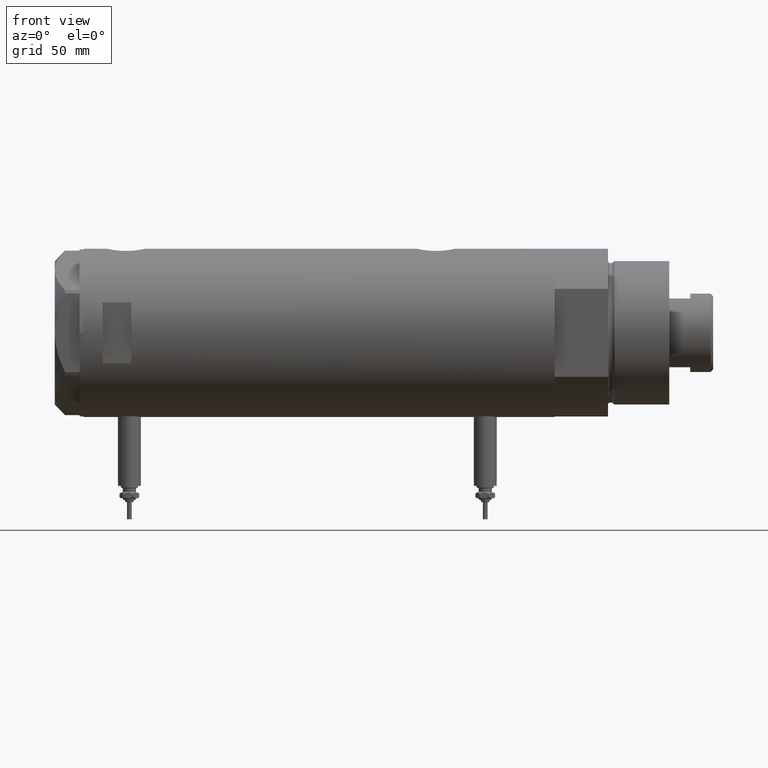
[diagram: clean part render]
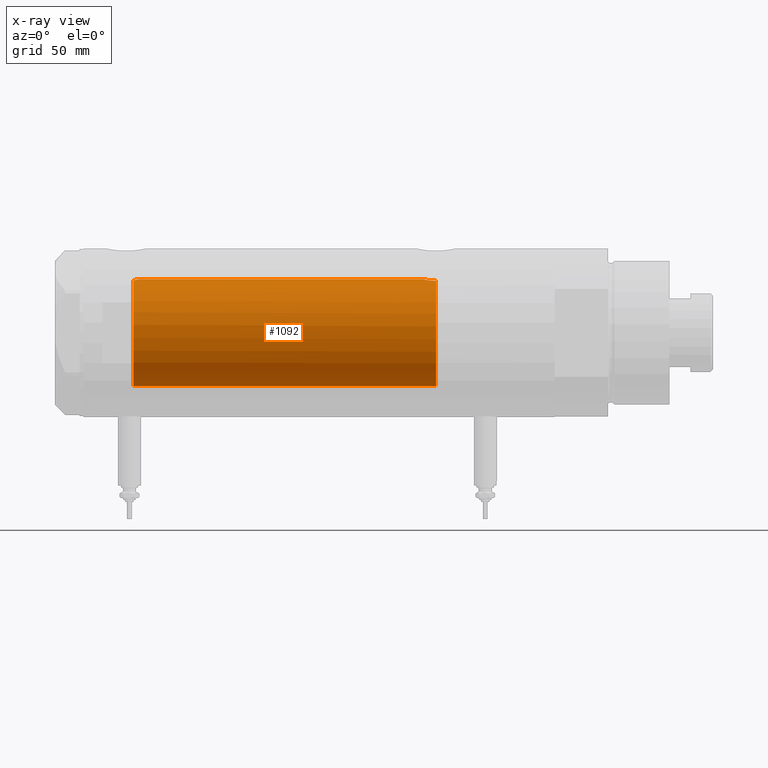
[diagram: x-ray — body ghosted, one internal face saturated and labeled with its STEP entity id]
A machine part, front view, then the same camera in x-ray: the body is ghosted and one INTERNAL B-rep face — a face not visible from any outside direction — is saturated and labeled: STEP entity #1092.
In plain terms, the highlighted cylindrical surface (partial cylindrical patch) has radius 28 mm, axis along (1, 0, -0).
Its self-contained STEP definition (entity closure, byte-faithful):
#87 = ORIENTED_EDGE ( 'NONE', *, *, #1264, .F. ) ;
#231 = DIRECTION ( 'NONE',  ( 0.000000000000000000, 0.000000000000000000, 1.000000000000000000 ) ) ;
#265 = VERTEX_POINT ( 'NONE', #1927 ) ;
#327 = CARTESIAN_POINT ( 'NONE',  ( 28.00000000000000000, 3.429011037612589276E-15, 123.2000000000000028 ) ) ;
#360 = EDGE_CURVE ( 'NONE', #4824, #458, #3272, .T. ) ;
#398 = CARTESIAN_POINT ( 'NONE',  ( 27.65700784474207552, -4.380217411398919403, -56.17047453774085852 ) ) ;
#415 = CARTESIAN_POINT ( 'NONE',  ( 27.68450581507584474, -4.196237264393388067, 95.82467802964416137 ) ) ;
#442 = CARTESIAN_POINT ( 'NONE',  ( 27.92172852149584727, -2.107204279616225140, 94.66075932795374115 ) ) ;
#458 = VERTEX_POINT ( 'NONE', #3155 ) ;
#498 = EDGE_LOOP ( 'NONE', ( #87, #1353, #1009, #2315, #521, #2836 ) ) ;
#521 = ORIENTED_EDGE ( 'NONE', *, *, #4210, .F. ) ;
#547 = CARTESIAN_POINT ( 'NONE',  ( 27.94978721344213568, -1.729827962054681922, -54.73650615356604021 ) ) ;
#613 = CARTESIAN_POINT ( 'NONE',  ( 27.99999999999999645, -0.2171842281426351329, -54.52000000000000313 ) ) ;
#695 = CARTESIAN_POINT ( 'NONE',  ( 0.000000000000000000, 0.000000000000000000, 123.2000000000000028 ) ) ;
#742 = LINE ( 'NONE', #4415, #4665 ) ;
#783 = CARTESIAN_POINT ( 'NONE',  ( 27.98432695902670631, -1.071102777755447377, 94.38580344277589518 ) ) ;
#813 = CARTESIAN_POINT ( 'NONE',  ( 27.59002303441815229, -4.790793940098342141, 96.35816176521461784 ) ) ;
#840 = CARTESIAN_POINT ( 'NONE',  ( 27.94009016578284132, -1.849003963078879931, 94.57947875320516573 ) ) ;
#881 = CARTESIAN_POINT ( 'NONE',  ( 27.84562549742226523, -2.942523713096117710, -55.21055141078907269 ) ) ;
#902 = CARTESIAN_POINT ( 'NONE',  ( 28.00000000000001066, -0.5413643627070152675, 94.32000000000002160 ) ) ;
#927 = CARTESIAN_POINT ( 'NONE',  ( 28.00000000000000000, 0.000000000000000000, 94.32000000000000739 ) ) ;
#938 = CARTESIAN_POINT ( 'NONE',  ( 27.92072186409136236, -2.143620579020478090, -54.86381653969048955 ) ) ;
#1009 = ORIENTED_EDGE ( 'NONE', *, *, #4756, .F. ) ;
#1020 = B_SPLINE_CURVE_WITH_KNOTS ( 'NONE', 3,
 ( #4603, #902, #783, #840, #442, #4517, #3654, #4048, #3599, #5458, #415, #813, #1298, #2286 ),
 .UNSPECIFIED., .F., .F.,
 ( 4, 2, 2, 2, 2, 2, 4 ),
 ( 0.000000000000000000, 0.001600622945448065652, 0.002400934418172098045, 0.003201245890896130437, 0.004001557363620162830, 0.004801868836344194355, 0.006402491781792285161 ),
 .UNSPECIFIED. ) ;
#1092 = ADVANCED_FACE ( 'NONE', ( #2064 ), #2964, .F. ) ;
#1262 = EDGE_CURVE ( 'NONE', #1432, #265, #3107, .T. ) ;
#1264 = EDGE_CURVE ( 'NONE', #1432, #458, #1020, .T. ) ;
#1298 = CARTESIAN_POINT ( 'NONE',  ( 27.52591771332015114, -5.139864392033250517, 96.75689419952075809 ) ) ;
#1310 = CARTESIAN_POINT ( 'NONE',  ( 27.34439869716139171, -6.024183900845905271, -58.44423424753806273 ) ) ;
#1353 = ORIENTED_EDGE ( 'NONE', *, *, #1262, .T. ) ;
#1432 = VERTEX_POINT ( 'NONE', #927 ) ;
#1601 = CARTESIAN_POINT ( 'NONE',  ( 0.000000000000000000, 0.000000000000000000, 97.20000000000000284 ) ) ;
#1688 = VERTEX_POINT ( 'NONE', #5566 ) ;
#1703 = DIRECTION ( 'NONE',  ( -1.000000000000000000, 0.000000000000000000, 0.000000000000000000 ) ) ;
#1770 = CARTESIAN_POINT ( 'NONE',  ( 27.36461315879794043, -5.931995402771976345, -58.24427370164930551 ) ) ;
#1828 = AXIS2_PLACEMENT_3D ( 'NONE', #695, #5855, #1703 ) ;
#1843 = DIRECTION ( 'NONE',  ( -1.000000000000000000, 0.000000000000000000, 0.000000000000000000 ) ) ;
#1886 = CARTESIAN_POINT ( 'NONE',  ( 27.99747352180818538, -0.4347571716796903019, -54.53072531013187074 ) ) ;
#1927 = CARTESIAN_POINT ( 'NONE',  ( 28.00000000000000000, 8.058211040235281960E-16, -54.52000000000001023 ) ) ;
#1928 = VECTOR ( 'NONE', #5911, 1000.000000000000000 ) ;
#1979 = CARTESIAN_POINT ( 'NONE',  ( 27.98730817101646551, -0.8707001454186197309, -54.57418472479973559 ) ) ;
#2064 = FACE_OUTER_BOUND ( 'NONE', #498, .T. ) ;
#2214 = CARTESIAN_POINT ( 'NONE',  ( 27.26146154097650154, -6.389008671741138734, -59.46702257288441729 ) ) ;
#2246 = CARTESIAN_POINT ( 'NONE',  ( 27.70817449315709524, -4.048115514111798596, -55.89463981057747333 ) ) ;
#2286 = CARTESIAN_POINT ( 'NONE',  ( 27.46622653369042411, -5.441176343402230664, 97.20000000000000284 ) ) ;
#2287 = CARTESIAN_POINT ( 'NONE',  ( 0.000000000000000000, 0.000000000000000000, -61.20000000000000284 ) ) ;
#2315 = ORIENTED_EDGE ( 'NONE', *, *, #2441, .T. ) ;
#2421 = CARTESIAN_POINT ( 'NONE',  ( 27.97963188585489291, -1.089002775846584337, -54.60708365738663161 ) ) ;
#2441 = EDGE_CURVE ( 'NONE', #1688, #4100, #4844, .T. ) ;
#2580 = DIRECTION ( 'NONE',  ( -0.000000000000000000, -0.000000000000000000, -1.000000000000000000 ) ) ;
#2605 = AXIS2_PLACEMENT_3D ( 'NONE', #1601, #231, #3926 ) ;
#2638 = CARTESIAN_POINT ( 'NONE',  ( 27.21605408577812568, -6.579240077698937483, -61.20000000000000284 ) ) ;
#2689 = CARTESIAN_POINT ( 'NONE',  ( 27.50152613123828260, -5.265397630035327126, -57.13030070339349464 ) ) ;
#2710 = DIRECTION ( 'NONE',  ( 0.000000000000000000, 0.000000000000000000, -1.000000000000000000 ) ) ;
#2836 = ORIENTED_EDGE ( 'NONE', *, *, #360, .T. ) ;
#2931 = B_SPLINE_CURVE_WITH_KNOTS ( 'NONE', 3,
 ( #2638, #4504, #5891, #2214, #5009, #1310, #1770, #5469, #3147, #2689, #4555, #398, #2246, #5960, #4091, #881, #4586, #938, #547, #2421, #1979, #1886, #613, #4209 ),
 .UNSPECIFIED., .F., .F.,
 ( 4, 2, 2, 2, 2, 2, 2, 2, 2, 2, 2, 4 ),
 ( 0.01022506235776657162, 0.01152748911132702239, 0.01282991586488747143, 0.01348112924166769769, 0.01413234261844792047, 0.01543476937200837125, 0.01673719612556882202, 0.01738840950234904481, 0.01803962287912927107, 0.01934204963268972011, 0.01999326300946994983, 0.02064447638625017609 ),
 .UNSPECIFIED. ) ;
#2964 = CYLINDRICAL_SURFACE ( 'NONE', #1828, 28.00000000000000000 ) ;
#3107 = LINE ( 'NONE', #327, #1928 ) ;
#3147 = CARTESIAN_POINT ( 'NONE',  ( 27.43032278742161623, -5.620674311437143800, -57.67201933177630480 ) ) ;
#3155 = CARTESIAN_POINT ( 'NONE',  ( 27.46622653369042411, -5.441176343402230664, 97.20000000000000284 ) ) ;
#3252 = CARTESIAN_POINT ( 'NONE',  ( -28.00000000000000000, 0.000000000000000000, -61.20000000000000284 ) ) ;
#3272 = CIRCLE ( 'NONE', #2605, 28.00000000000000000 ) ;
#3599 = CARTESIAN_POINT ( 'NONE',  ( 27.77532582369374481, -3.546840381797768949, 95.35134423525664715 ) ) ;
#3654 = CARTESIAN_POINT ( 'NONE',  ( 27.85549665828546750, -2.850794839423819393, 94.96367683698767337 ) ) ;
#3926 = DIRECTION ( 'NONE',  ( 1.000000000000000000, 0.000000000000000000, 0.000000000000000000 ) ) ;
#4048 = CARTESIAN_POINT ( 'NONE',  ( 27.80347162683809259, -3.320043793664065657, 95.21279742576763283 ) ) ;
#4091 = CARTESIAN_POINT ( 'NONE',  ( 27.80238224209237430, -3.326386449198543538, -55.41852099557871014 ) ) ;
#4100 = VERTEX_POINT ( 'NONE', #3252 ) ;
#4209 = CARTESIAN_POINT ( 'NONE',  ( 28.00000000000000000, 8.058211040235281960E-16, -54.52000000000001023 ) ) ;
#4210 = EDGE_CURVE ( 'NONE', #4824, #4100, #742, .T. ) ;
#4415 = CARTESIAN_POINT ( 'NONE',  ( -28.00000000000000000, 0.000000000000000000, 123.2000000000000028 ) ) ;
#4504 = CARTESIAN_POINT ( 'NONE',  ( 27.21445766202535310, -6.585843933871719180, -60.76551644800678531 ) ) ;
#4517 = CARTESIAN_POINT ( 'NONE',  ( 27.87937907436173646, -2.608343522657388114, 94.85310177797239817 ) ) ;
#4555 = CARTESIAN_POINT ( 'NONE',  ( 27.55308463769899774, -4.992385646466217075, -56.79156508565561978 ) ) ;
#4586 = CARTESIAN_POINT ( 'NONE',  ( 27.86589383012872645, -2.744524676092583437, -55.11575755532262377 ) ) ;
#4603 = CARTESIAN_POINT ( 'NONE',  ( 28.00000000000000000, 0.000000000000000000, 94.32000000000000739 ) ) ;
#4665 = VECTOR ( 'NONE', #2580, 1000.000000000000000 ) ;
#4756 = EDGE_CURVE ( 'NONE', #1688, #265, #2931, .T. ) ;
#4773 = CARTESIAN_POINT ( 'NONE',  ( -28.00000000000000000, 0.000000000000000000, 97.20000000000000284 ) ) ;
#4824 = VERTEX_POINT ( 'NONE', #4773 ) ;
#4844 = CIRCLE ( 'NONE', #5134, 28.00000000000000000 ) ;
#5009 = CARTESIAN_POINT ( 'NONE',  ( 27.28993558706078915, -6.267945658363877293, -59.05080727201159618 ) ) ;
#5134 = AXIS2_PLACEMENT_3D ( 'NONE', #2287, #2710, #1843 ) ;
#5458 = CARTESIAN_POINT ( 'NONE',  ( 27.71590503262370930, -3.984646725731645578, 95.65688566206239329 ) ) ;
#5469 = CARTESIAN_POINT ( 'NONE',  ( 27.40754191563011588, -5.730381220489944027, -57.85863096555547713 ) ) ;
#5566 = CARTESIAN_POINT ( 'NONE',  ( 27.21605408577812568, -6.579240077698937483, -61.20000000000000284 ) ) ;
#5855 = DIRECTION ( 'NONE',  ( -0.000000000000000000, -0.000000000000000000, -1.000000000000000000 ) ) ;
#5891 = CARTESIAN_POINT ( 'NONE',  ( 27.22359243188622457, -6.548490838374227963, -60.32326656774585416 ) ) ;
#5911 = DIRECTION ( 'NONE',  ( -0.000000000000000000, -0.000000000000000000, -1.000000000000000000 ) ) ;
#5960 = CARTESIAN_POINT ( 'NONE',  ( 27.77950496257090762, -3.511644525604265432, -55.53121142391831455 ) ) ;